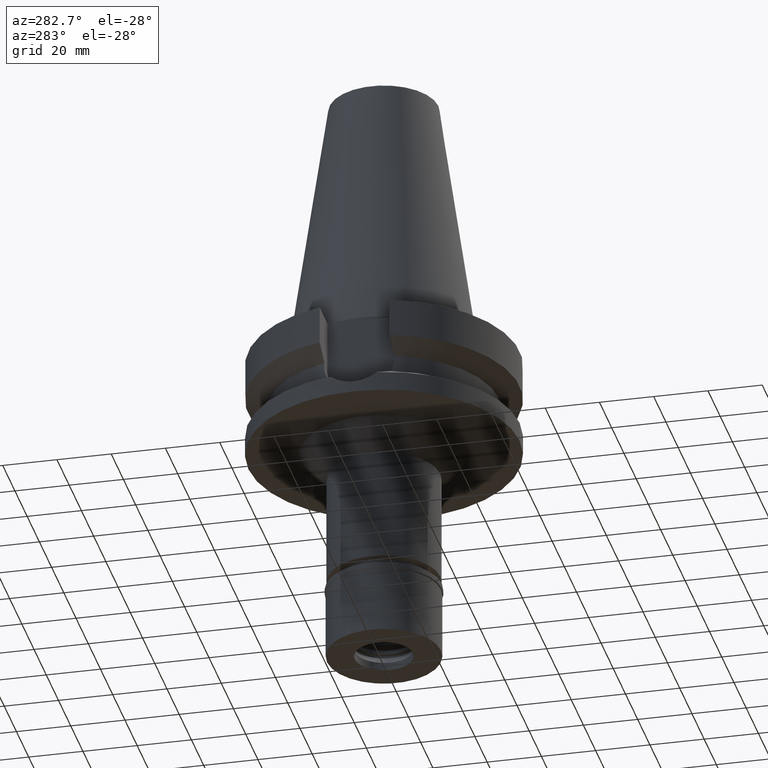
[diagram: clean part render]
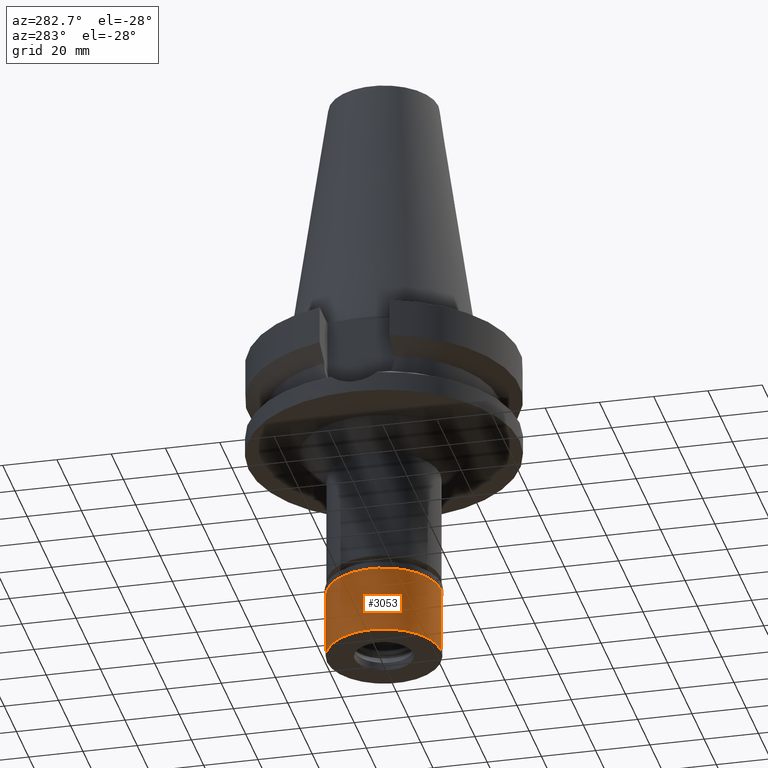
[diagram: same view with one face highlighted and labeled with its STEP entity id]
A machine part, auxiliary view. The second image highlights one B-rep face of the part: STEP entity #3053.
In plain terms, the highlighted cylindrical surface (partial cylindrical patch) has radius 21 mm, axis along (0, 0, -1).
Its self-contained STEP definition (entity closure, byte-faithful):
#170 = AXIS2_PLACEMENT_3D ( 'NONE', #2034, #612, #630 ) ;
#257 = DIRECTION ( 'NONE',  ( 0.0000000000000000000, 0.0000000000000000000, -1.000000000000000000 ) ) ;
#331 = AXIS2_PLACEMENT_3D ( 'NONE', #457, #257, #1196 ) ;
#457 = CARTESIAN_POINT ( 'NONE',  ( 0.0000000000000000000, 0.0000000000000000000, -2.299999999999999822 ) ) ;
#612 = DIRECTION ( 'NONE',  ( 0.0000000000000000000, 0.0000000000000000000, 1.000000000000000000 ) ) ;
#630 = DIRECTION ( 'NONE',  ( 0.0000000000000000000, 1.000000000000000000, 0.0000000000000000000 ) ) ;
#665 = CARTESIAN_POINT ( 'NONE',  ( 0.0000000000000000000, 0.0000000000000000000, 0.0000000000000000000 ) ) ;
#775 = CIRCLE ( 'NONE', #331, 21.00000000000000000 ) ;
#880 = DIRECTION ( 'NONE',  ( 0.0000000000000000000, 0.0000000000000000000, -1.000000000000000000 ) ) ;
#926 = CARTESIAN_POINT ( 'NONE',  ( 0.0000000000000000000, 21.00000000000000000, -2.299999999999999822 ) ) ;
#964 = ORIENTED_EDGE ( 'NONE', *, *, #1075, .F. ) ;
#976 = DIRECTION ( 'NONE',  ( 0.0000000000000000000, -1.000000000000000000, 0.0000000000000000000 ) ) ;
#1007 = ORIENTED_EDGE ( 'NONE', *, *, #1852, .T. ) ;
#1022 = LINE ( 'NONE', #1076, #1489 ) ;
#1075 = EDGE_CURVE ( 'NONE', #2177, #1681, #1022, .T. ) ;
#1076 = CARTESIAN_POINT ( 'NONE',  ( 0.0000000000000000000, -21.00000000000000000, -2.299999999999999822 ) ) ;
#1079 = ORIENTED_EDGE ( 'NONE', *, *, #1457, .T. ) ;
#1196 = DIRECTION ( 'NONE',  ( 0.0000000000000000000, -1.000000000000000000, 0.0000000000000000000 ) ) ;
#1213 = CARTESIAN_POINT ( 'NONE',  ( 0.0000000000000000000, -21.00000000000000000, -2.299999999999999822 ) ) ;
#1237 = VECTOR ( 'NONE', #880, 1000.000000000000000 ) ;
#1300 = CARTESIAN_POINT ( 'NONE',  ( 0.0000000000000000000, 21.00000000000000000, -2.299999999999999822 ) ) ;
#1303 = AXIS2_PLACEMENT_3D ( 'NONE', #665, #2857, #976 ) ;
#1419 = VERTEX_POINT ( 'NONE', #926 ) ;
#1439 = CYLINDRICAL_SURFACE ( 'NONE', #1303, 21.00000000000000000 ) ;
#1457 = EDGE_CURVE ( 'NONE', #2177, #1419, #775, .T. ) ;
#1489 = VECTOR ( 'NONE', #1515, 1000.000000000000000 ) ;
#1515 = DIRECTION ( 'NONE',  ( 0.0000000000000000000, 0.0000000000000000000, -1.000000000000000000 ) ) ;
#1638 = CIRCLE ( 'NONE', #170, 21.00000000000000000 ) ;
#1681 = VERTEX_POINT ( 'NONE', #2303 ) ;
#1774 = EDGE_LOOP ( 'NONE', ( #1007, #964, #1079, #1963 ) ) ;
#1852 = EDGE_CURVE ( 'NONE', #2489, #1681, #1638, .T. ) ;
#1912 = EDGE_CURVE ( 'NONE', #1419, #2489, #2323, .T. ) ;
#1963 = ORIENTED_EDGE ( 'NONE', *, *, #1912, .T. ) ;
#2034 = CARTESIAN_POINT ( 'NONE',  ( 0.0000000000000000000, 0.0000000000000000000, -27.09999999999999787 ) ) ;
#2177 = VERTEX_POINT ( 'NONE', #1213 ) ;
#2189 = FACE_OUTER_BOUND ( 'NONE', #1774, .T. ) ;
#2303 = CARTESIAN_POINT ( 'NONE',  ( 0.0000000000000000000, -21.00000000000000000, -27.09999999999999787 ) ) ;
#2323 = LINE ( 'NONE', #1300, #1237 ) ;
#2489 = VERTEX_POINT ( 'NONE', #2588 ) ;
#2588 = CARTESIAN_POINT ( 'NONE',  ( 0.0000000000000000000, 21.00000000000000000, -27.09999999999999787 ) ) ;
#2857 = DIRECTION ( 'NONE',  ( 0.0000000000000000000, 0.0000000000000000000, -1.000000000000000000 ) ) ;
#3053 = ADVANCED_FACE ( 'NONE', ( #2189 ), #1439, .T. ) ;